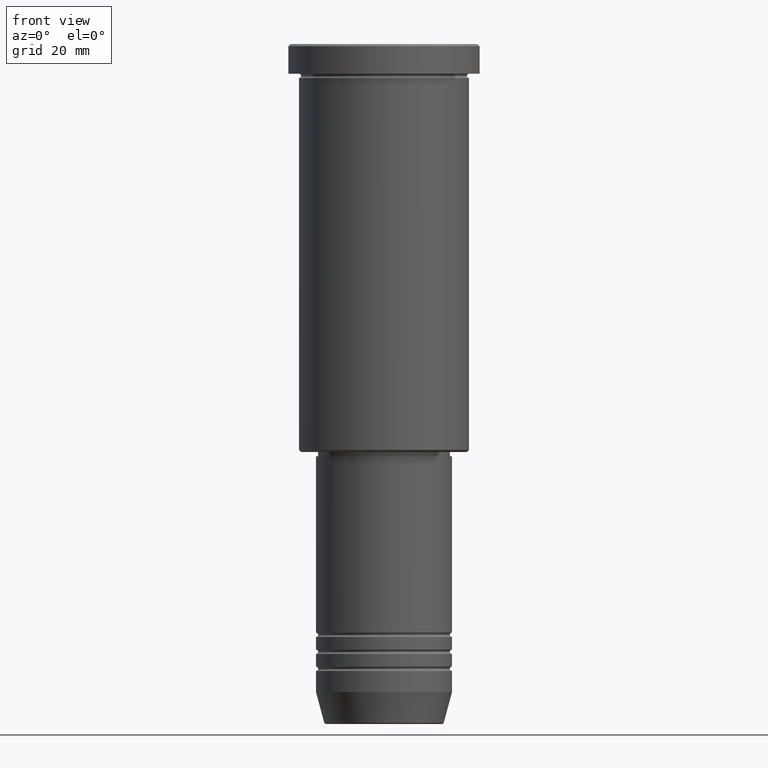
[diagram: clean part render]
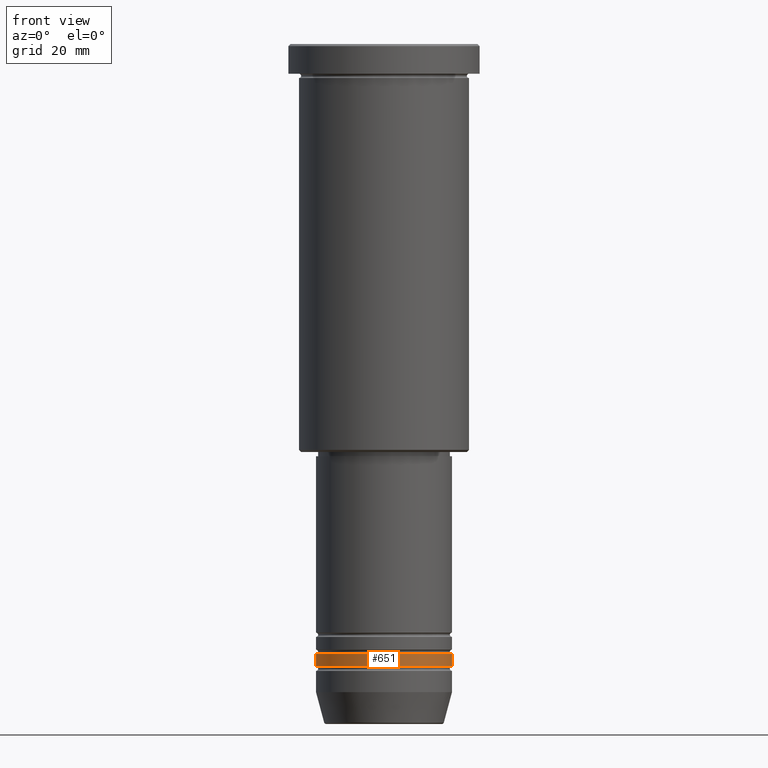
[diagram: same view with one face highlighted and labeled with its STEP entity id]
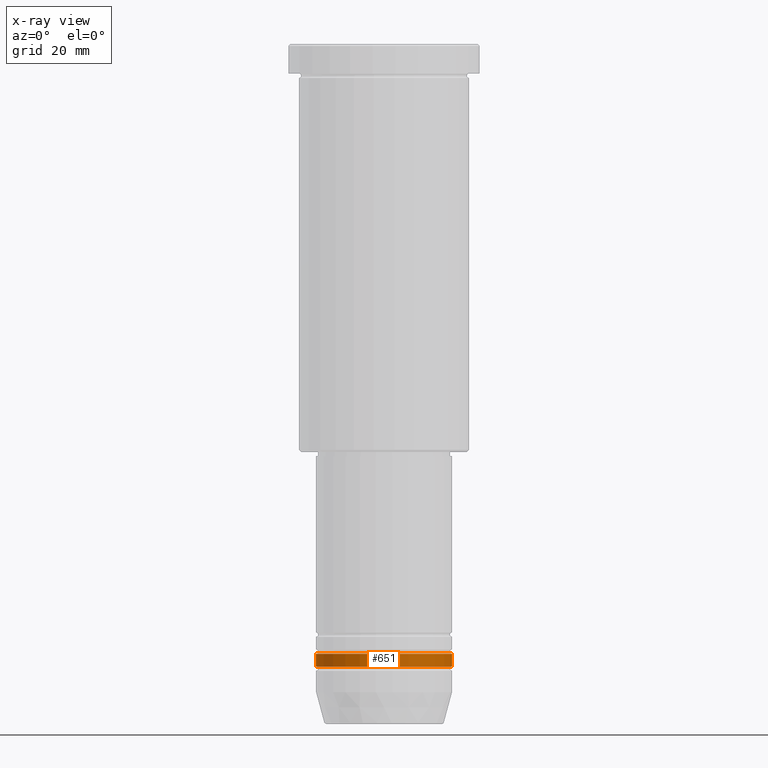
[diagram: x-ray of the same camera — body ghosted, the highlighted face saturated]
A machine part, front view. The second image highlights one B-rep face of the part: STEP entity #651.
The next image is the same camera in x-ray: the body ghosted, the highlighted face saturated — about 0% of this face is hidden behind the body in this view.
In plain terms, the highlighted cylindrical surface (partial cylindrical patch) has radius 16 mm, axis along (-0, -0, 1).
Its self-contained STEP definition (entity closure, byte-faithful):
#18 = CARTESIAN_POINT ( 'NONE',  ( -16.00000000000000000, 1.959434878635765131E-15, -146.4999999999999716 ) ) ;
#39 = EDGE_CURVE ( 'NONE', #913, #831, #251, .T. ) ;
#53 = ORIENTED_EDGE ( 'NONE', *, *, #471, .T. ) ;
#130 = DIRECTION ( 'NONE',  ( 1.000000000000000000, 0.000000000000000000, 0.000000000000000000 ) ) ;
#147 = ORIENTED_EDGE ( 'NONE', *, *, #169, .F. ) ;
#149 = AXIS2_PLACEMENT_3D ( 'NONE', #757, #577, #130 ) ;
#169 = EDGE_CURVE ( 'NONE', #190, #831, #708, .T. ) ;
#176 = AXIS2_PLACEMENT_3D ( 'NONE', #372, #468, #556 ) ;
#190 = VERTEX_POINT ( 'NONE', #469 ) ;
#230 = LINE ( 'NONE', #314, #692 ) ;
#251 = LINE ( 'NONE', #1181, #1075 ) ;
#277 = CYLINDRICAL_SURFACE ( 'NONE', #176, 16.00000000000000000 ) ;
#314 = CARTESIAN_POINT ( 'NONE',  ( -16.00000000000000000, 1.959434878635765131E-15, 0.000000000000000000 ) ) ;
#360 = CIRCLE ( 'NONE', #149, 16.00000000000000000 ) ;
#372 = CARTESIAN_POINT ( 'NONE',  ( 0.000000000000000000, 0.000000000000000000, 0.000000000000000000 ) ) ;
#383 = EDGE_CURVE ( 'NONE', #790, #190, #230, .T. ) ;
#417 = ORIENTED_EDGE ( 'NONE', *, *, #383, .F. ) ;
#439 = EDGE_LOOP ( 'NONE', ( #417, #53, #841, #147 ) ) ;
#468 = DIRECTION ( 'NONE',  ( -0.000000000000000000, -0.000000000000000000, 1.000000000000000000 ) ) ;
#469 = CARTESIAN_POINT ( 'NONE',  ( -16.00000000000000000, 1.959434878635765131E-15, -143.5000000000000000 ) ) ;
#471 = EDGE_CURVE ( 'NONE', #790, #913, #360, .T. ) ;
#556 = DIRECTION ( 'NONE',  ( 1.000000000000000000, 0.000000000000000000, 0.000000000000000000 ) ) ;
#577 = DIRECTION ( 'NONE',  ( -0.000000000000000000, -0.000000000000000000, 1.000000000000000000 ) ) ;
#595 = CARTESIAN_POINT ( 'NONE',  ( 16.00000000000000000, 0.000000000000000000, -143.5000000000000000 ) ) ;
#651 = ADVANCED_FACE ( 'NONE', ( #824 ), #277, .T. ) ;
#652 = DIRECTION ( 'NONE',  ( -0.000000000000000000, -0.000000000000000000, 1.000000000000000000 ) ) ;
#692 = VECTOR ( 'NONE', #1124, 1000.000000000000000 ) ;
#708 = CIRCLE ( 'NONE', #804, 16.00000000000000000 ) ;
#757 = CARTESIAN_POINT ( 'NONE',  ( 0.000000000000000000, 0.000000000000000000, -146.4999999999999716 ) ) ;
#790 = VERTEX_POINT ( 'NONE', #18 ) ;
#804 = AXIS2_PLACEMENT_3D ( 'NONE', #907, #652, #1002 ) ;
#815 = DIRECTION ( 'NONE',  ( -0.000000000000000000, -0.000000000000000000, 1.000000000000000000 ) ) ;
#824 = FACE_OUTER_BOUND ( 'NONE', #439, .T. ) ;
#831 = VERTEX_POINT ( 'NONE', #595 ) ;
#841 = ORIENTED_EDGE ( 'NONE', *, *, #39, .T. ) ;
#875 = CARTESIAN_POINT ( 'NONE',  ( 16.00000000000000000, 0.000000000000000000, -146.4999999999999716 ) ) ;
#907 = CARTESIAN_POINT ( 'NONE',  ( 0.000000000000000000, 0.000000000000000000, -143.5000000000000000 ) ) ;
#913 = VERTEX_POINT ( 'NONE', #875 ) ;
#1002 = DIRECTION ( 'NONE',  ( 1.000000000000000000, 0.000000000000000000, 0.000000000000000000 ) ) ;
#1075 = VECTOR ( 'NONE', #815, 1000.000000000000000 ) ;
#1124 = DIRECTION ( 'NONE',  ( -0.000000000000000000, -0.000000000000000000, 1.000000000000000000 ) ) ;
#1181 = CARTESIAN_POINT ( 'NONE',  ( 16.00000000000000000, 0.000000000000000000, 0.000000000000000000 ) ) ;